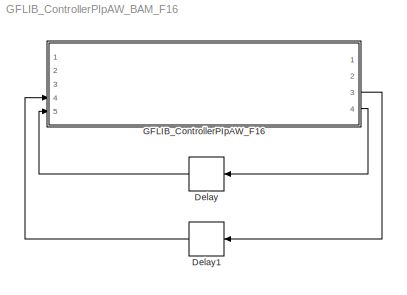
MODEL GFLIB_ControllerPIpAW_BAM_F16
KIND model
BLOCK [Delay] Delay
  DelayLength = 1
  InitialCondition = 0
  InputPortMap = u0
  Ports = [1, 1]
  SID = 24
BLOCK [Delay] Delay1
  DelayLength = 1
  InitialCondition = 0
  InputPortMap = u0
  Ports = [1, 1]
  SID = 25
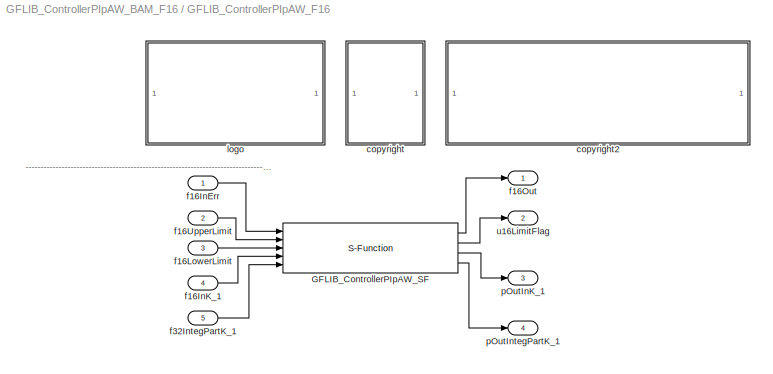
BLOCK [SubSystem] GFLIB_ControllerPIpAW_F16
  Ports = [5, 4]
  RequestExecContextInheritance = off
  SID = 1
BLOCK [S-Function] GFLIB_ControllerPIpAW_F16/GFLIB_ControllerPIpAW_SF
  EnableBusSupport = off
  FunctionName = GFLIB_ControllerPIpAW_SF_F16
  Parameters = f16PropGain,s16PropGainShift,f16IntegGain,s16IntegGainShift
  Ports = [5, 4]
  SID = 4
BLOCK [SubSystem] GFLIB_ControllerPIpAW_F16/<copyright redacted>
  Ports = []
  RequestExecContextInheritance = off
  SID = 18
BLOCK [SubSystem] GFLIB_ControllerPIpAW_F16/copyright2
  Ports = []
  RequestExecContextInheritance = off
  SID = 21
BLOCK [Inport] GFLIB_ControllerPIpAW_F16/f16InErr
  IconDisplay = Port number
  SID = 5
BLOCK [Inport] GFLIB_ControllerPIpAW_F16/f16InK_1
  IconDisplay = Port number
  Port = 4
  SID = 8
BLOCK [Inport] GFLIB_ControllerPIpAW_F16/f16LowerLimit
  IconDisplay = Port number
  Port = 3
  SID = 7
BLOCK [Outport] GFLIB_ControllerPIpAW_F16/f16Out
  IconDisplay = Port number
  SID = 10
BLOCK [Inport] GFLIB_ControllerPIpAW_F16/f16UpperLimit
  IconDisplay = Port number
  Port = 2
  SID = 6
BLOCK [Inport] GFLIB_ControllerPIpAW_F16/f32IntegPartK_1
  IconDisplay = Port number
  Port = 5
  SID = 9
BLOCK [SubSystem] GFLIB_ControllerPIpAW_F16/logo
  Ports = []
  RequestExecContextInheritance = off
  SID = 14
BLOCK [Outport] GFLIB_ControllerPIpAW_F16/pOutInK_1
  IconDisplay = Port number
  Port = 3
  SID = 12
BLOCK [Outport] GFLIB_ControllerPIpAW_F16/pOutIntegPartK_1
  IconDisplay = Port number
  Port = 4
  SID = 13
BLOCK [Outport] GFLIB_ControllerPIpAW_F16/u16LimitFlag
  IconDisplay = Port number
  Port = 2
  SID = 11
ANNOTATION GFLIB_ControllerPIpAW_F16: ---------------------------------------------------------------------------------------------------------------------------------------------------------------------------------------------------
LINE Delay1:1 -> GFLIB_ControllerPIpAW_F16:4
LINE Delay:1 -> GFLIB_ControllerPIpAW_F16:5
LINE GFLIB_ControllerPIpAW_F16/GFLIB_ControllerPIpAW_SF:1 -> GFLIB_ControllerPIpAW_F16/f16Out:1
LINE GFLIB_ControllerPIpAW_F16/GFLIB_ControllerPIpAW_SF:2 -> GFLIB_ControllerPIpAW_F16/u16LimitFlag:1
LINE GFLIB_ControllerPIpAW_F16/GFLIB_ControllerPIpAW_SF:3 -> GFLIB_ControllerPIpAW_F16/pOutInK_1:1
LINE GFLIB_ControllerPIpAW_F16/GFLIB_ControllerPIpAW_SF:4 -> GFLIB_ControllerPIpAW_F16/pOutIntegPartK_1:1
LINE GFLIB_ControllerPIpAW_F16/f16InErr:1 -> GFLIB_ControllerPIpAW_F16/GFLIB_ControllerPIpAW_SF:1
LINE GFLIB_ControllerPIpAW_F16/f16InK_1:1 -> GFLIB_ControllerPIpAW_F16/GFLIB_ControllerPIpAW_SF:4
LINE GFLIB_ControllerPIpAW_F16/f16LowerLimit:1 -> GFLIB_ControllerPIpAW_F16/GFLIB_ControllerPIpAW_SF:3
LINE GFLIB_ControllerPIpAW_F16/f16UpperLimit:1 -> GFLIB_ControllerPIpAW_F16/GFLIB_ControllerPIpAW_SF:2
LINE GFLIB_ControllerPIpAW_F16/f32IntegPartK_1:1 -> GFLIB_ControllerPIpAW_F16/GFLIB_ControllerPIpAW_SF:5
LINE GFLIB_ControllerPIpAW_F16:3 -> Delay1:1
LINE GFLIB_ControllerPIpAW_F16:4 -> Delay:1
